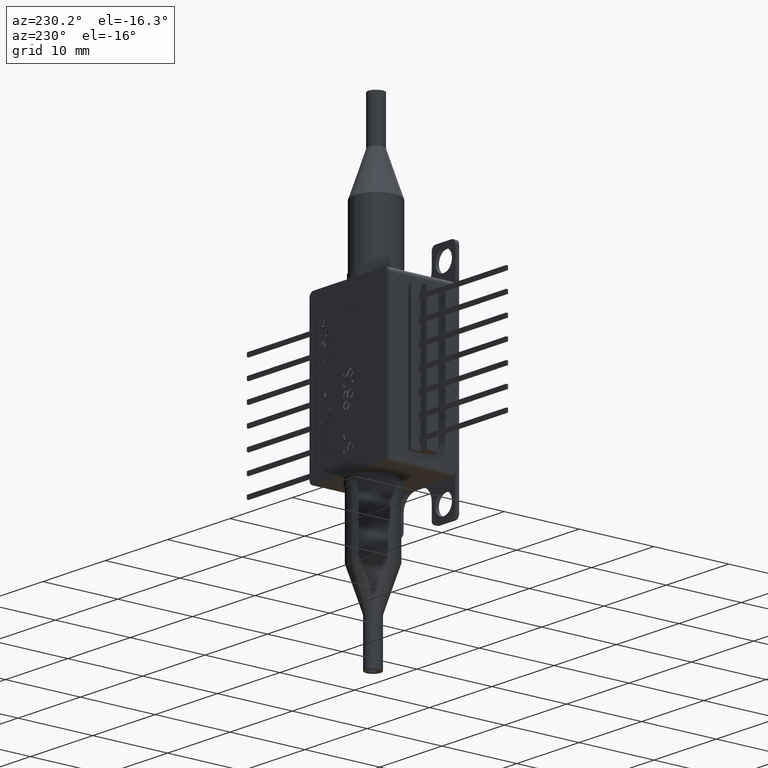
[diagram: clean part render]
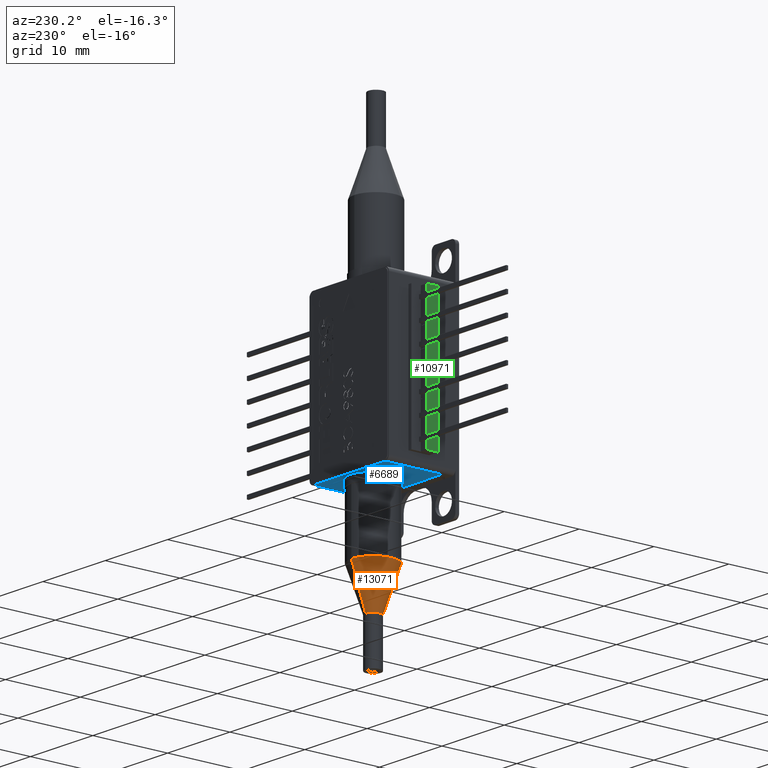
[diagram: same view with three faces highlighted in distinct colors, each labeled with its STEP entity id]
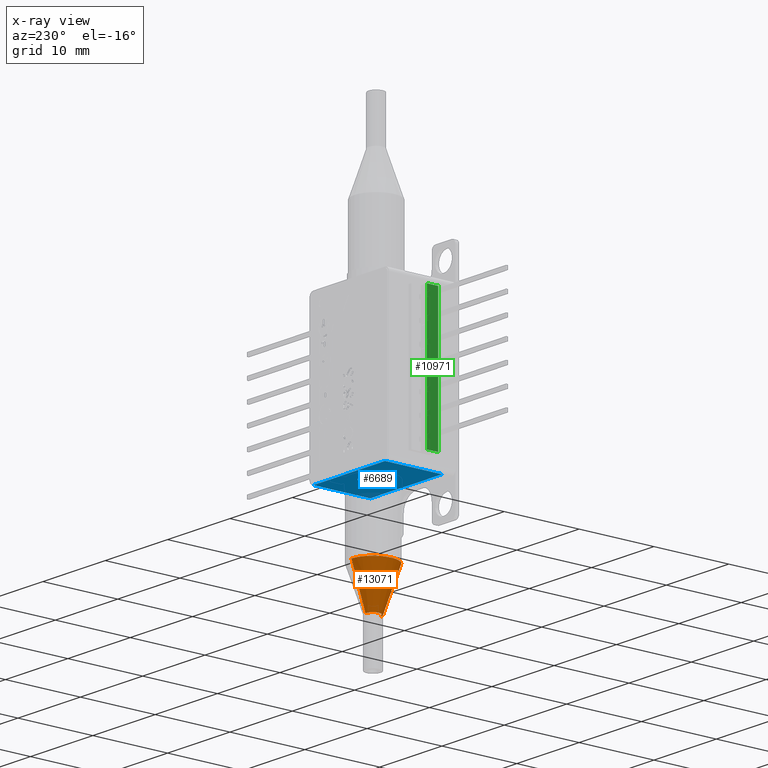
[diagram: x-ray of the same camera — body ghosted, the three highlighted faces saturated]
A machine part, auxiliary view with three faces highlighted in distinct colors.
The next image is the same camera in x-ray (body ghosted, the three faces saturated) — at least one of them is partly hidden behind the body in this view.
Their STEP definitions:

[orange] entity #13071 — the highlighted conical surface has half-angle 18.871 deg.
#552 = DIRECTION ( 'NONE',  ( 0.0000000000000000000, 1.000000000000000000, 0.0000000000000000000 ) ) ;
#1209 = CARTESIAN_POINT ( 'NONE',  ( -103.5761848420183071, 21.53885114794376321, 16.79721449318330784 ) ) ;
#2246 = CARTESIAN_POINT ( 'NONE',  ( -103.5761848420183071, 20.51885114794376364, 22.29721449318330784 ) ) ;
#2400 = DIRECTION ( 'NONE',  ( 0.0000000000000000000, 1.000000000000000000, 0.0000000000000000000 ) ) ;
#3131 = EDGE_CURVE ( 'NONE', #13262, #4790, #8914, .T. ) ;
#3256 = ORIENTED_EDGE ( 'NONE', *, *, #3131, .F. ) ;
#3767 = CONICAL_SURFACE ( 'NONE', #19493, 1.020000000000000018, 0.3293673820665676266 ) ;
#3783 = LINE ( 'NONE', #6023, #21095 ) ;
#3939 = CARTESIAN_POINT ( 'NONE',  ( -103.5761848420183071, 17.61885114794375795, 22.29721449318330784 ) ) ;
#4602 = EDGE_CURVE ( 'NONE', #6433, #21760, #21709, .T. ) ;
#4790 = VERTEX_POINT ( 'NONE', #1209 ) ;
#5500 = ORIENTED_EDGE ( 'NONE', *, *, #11175, .F. ) ;
#6023 = CARTESIAN_POINT ( 'NONE',  ( -103.5761848420183071, 19.49885114794376406, 16.79721449318330784 ) ) ;
#6433 = VERTEX_POINT ( 'NONE', #3939 ) ;
#6671 = CARTESIAN_POINT ( 'NONE',  ( -103.5761848420183071, 20.51885114794376364, 16.79721449318330784 ) ) ;
#7257 = EDGE_CURVE ( 'NONE', #13262, #6433, #3783, .T. ) ;
#7382 = DIRECTION ( 'NONE',  ( -0.0000000000000000000, 0.0000000000000000000, -1.000000000000000000 ) ) ;
#7479 = CARTESIAN_POINT ( 'NONE',  ( -103.5761848420183071, 23.41885114794376577, 22.29721449318330784 ) ) ;
#8914 = CIRCLE ( 'NONE', #16220, 1.020000000000000018 ) ;
#9050 = ORIENTED_EDGE ( 'NONE', *, *, #4602, .T. ) ;
#10380 = ORIENTED_EDGE ( 'NONE', *, *, #7257, .T. ) ;
#10585 = DIRECTION ( 'NONE',  ( -0.0000000000000000000, 0.0000000000000000000, -1.000000000000000000 ) ) ;
#11175 = EDGE_CURVE ( 'NONE', #4790, #21760, #17806, .T. ) ;
#13071 = ADVANCED_FACE ( 'NONE', ( #13217 ), #3767, .T. ) ;
#13217 = FACE_OUTER_BOUND ( 'NONE', #20973, .T. ) ;
#13262 = VERTEX_POINT ( 'NONE', #16040 ) ;
#13344 = VECTOR ( 'NONE', #13433, 999.9999999999998863 ) ;
#13433 = DIRECTION ( 'NONE',  ( 3.961052474285233192E-17, 0.3234444802405945230, 0.9462471496400355342 ) ) ;
#14058 = CARTESIAN_POINT ( 'NONE',  ( -103.5761848420183071, 21.53885114794376321, 16.79721449318330784 ) ) ;
#14099 = CARTESIAN_POINT ( 'NONE',  ( -103.5761848420183071, 20.51885114794376364, 16.79721449318330784 ) ) ;
#15527 = DIRECTION ( 'NONE',  ( 0.0000000000000000000, -1.000000000000000000, 0.0000000000000000000 ) ) ;
#16040 = CARTESIAN_POINT ( 'NONE',  ( -103.5761848420183071, 19.49885114794376406, 16.79721449318330784 ) ) ;
#16220 = AXIS2_PLACEMENT_3D ( 'NONE', #14099, #7382, #2400 ) ;
#17742 = DIRECTION ( 'NONE',  ( 0.0000000000000000000, -0.3234444802405945230, 0.9462471496400355342 ) ) ;
#17806 = LINE ( 'NONE', #14058, #13344 ) ;
#18683 = DIRECTION ( 'NONE',  ( 0.0000000000000000000, 0.0000000000000000000, 1.000000000000000000 ) ) ;
#19493 = AXIS2_PLACEMENT_3D ( 'NONE', #6671, #18683, #15527 ) ;
#19597 = AXIS2_PLACEMENT_3D ( 'NONE', #2246, #10585, #552 ) ;
#20973 = EDGE_LOOP ( 'NONE', ( #5500, #3256, #10380, #9050 ) ) ;
#21095 = VECTOR ( 'NONE', #17742, 999.9999999999998863 ) ;
#21709 = CIRCLE ( 'NONE', #19597, 2.900000000000003464 ) ;
#21760 = VERTEX_POINT ( 'NONE', #7479 ) ;

[blue] entity #6689 — the highlighted planar face has unit normal (-0, 0, 1).
#64 = ORIENTED_EDGE ( 'NONE', *, *, #13916, .F. ) ;
#144 = DIRECTION ( 'NONE',  ( -1.000000000000000000, -0.0000000000000000000, -0.0000000000000000000 ) ) ;
#190 = LINE ( 'NONE', #3375, #3085 ) ;
#479 = AXIS2_PLACEMENT_3D ( 'NONE', #9407, #14447, #12783 ) ;
#739 = CIRCLE ( 'NONE', #479, 1.587500000000005684 ) ;
#1627 = ORIENTED_EDGE ( 'NONE', *, *, #15815, .F. ) ;
#1825 = CARTESIAN_POINT ( 'NONE',  ( -110.1601848420182961, 23.90485114794374510, 31.29721449318331139 ) ) ;
#1973 = CARTESIAN_POINT ( 'NONE',  ( -105.1636848420183128, 20.51885114794374587, 31.29721449318331139 ) ) ;
#2125 = EDGE_LOOP ( 'NONE', ( #64, #20164, #1627, #20250 ) ) ;
#2521 = DIRECTION ( 'NONE',  ( 0.0000000000000000000, 0.0000000000000000000, -1.000000000000000000 ) ) ;
#2711 = VERTEX_POINT ( 'NONE', #17650 ) ;
#2755 = ORIENTED_EDGE ( 'NONE', *, *, #17113, .F. ) ;
#3006 = CARTESIAN_POINT ( 'NONE',  ( -110.1601848420183103, 16.30485114794375079, 31.29721449318331139 ) ) ;
#3025 = FACE_BOUND ( 'NONE', #15501, .T. ) ;
#3085 = VECTOR ( 'NONE', #16831, 1000.000000000000000 ) ;
#3274 = VERTEX_POINT ( 'NONE', #12859 ) ;
#3310 = CARTESIAN_POINT ( 'NONE',  ( -109.5601848420183018, 16.30485114794375079, 31.29721449318331139 ) ) ;
#3375 = CARTESIAN_POINT ( 'NONE',  ( -109.5601848420183018, 16.30485114794374724, 31.29721449318331139 ) ) ;
#3423 = LINE ( 'NONE', #3006, #8946 ) ;
#3833 = AXIS2_PLACEMENT_3D ( 'NONE', #7347, #2521, #20899 ) ;
#3996 = DIRECTION ( 'NONE',  ( -0.0000000000000000000, 0.0000000000000000000, 1.000000000000000000 ) ) ;
#4725 = EDGE_CURVE ( 'NONE', #16112, #10805, #739, .T. ) ;
#4922 = EDGE_CURVE ( 'NONE', #18968, #2711, #190, .T. ) ;
#5964 = VECTOR ( 'NONE', #19854, 1000.000000000000000 ) ;
#6322 = VERTEX_POINT ( 'NONE', #7106 ) ;
#6689 = ADVANCED_FACE ( 'NONE', ( #3025, #7177 ), #20722, .F. ) ;
#7106 = CARTESIAN_POINT ( 'NONE',  ( -98.06018484201830177, 23.90485114794374510, 31.29721449318331139 ) ) ;
#7165 = CARTESIAN_POINT ( 'NONE',  ( -110.1601848420183103, 16.30485114794375079, 31.29721449318331139 ) ) ;
#7177 = FACE_OUTER_BOUND ( 'NONE', #2125, .T. ) ;
#7347 = CARTESIAN_POINT ( 'NONE',  ( -103.5761848420183071, 20.51885114794374587, 31.29721449318331139 ) ) ;
#7384 = DIRECTION ( 'NONE',  ( 1.000000000000000000, 0.0000000000000000000, 0.0000000000000000000 ) ) ;
#7989 = VECTOR ( 'NONE', #144, 1000.000000000000000 ) ;
#8946 = VECTOR ( 'NONE', #16529, 1000.000000000000000 ) ;
#9407 = CARTESIAN_POINT ( 'NONE',  ( -103.5761848420183071, 20.51885114794374587, 31.29721449318331139 ) ) ;
#9576 = CARTESIAN_POINT ( 'NONE',  ( -98.06018484201830177, 16.30485114794375079, 31.29721449318331139 ) ) ;
#10050 = AXIS2_PLACEMENT_3D ( 'NONE', #7165, #3996, #7384 ) ;
#10805 = VERTEX_POINT ( 'NONE', #12817 ) ;
#11345 = CIRCLE ( 'NONE', #3833, 1.587500000000005684 ) ;
#12027 = EDGE_CURVE ( 'NONE', #6322, #3274, #14314, .T. ) ;
#12465 = LINE ( 'NONE', #1825, #7989 ) ;
#12783 = DIRECTION ( 'NONE',  ( -1.000000000000000000, 0.0000000000000000000, 0.0000000000000000000 ) ) ;
#12817 = CARTESIAN_POINT ( 'NONE',  ( -101.9886848420183014, 20.51885114794374587, 31.29721449318331139 ) ) ;
#12859 = CARTESIAN_POINT ( 'NONE',  ( -98.06018484201830177, 16.30485114794375079, 31.29721449318331139 ) ) ;
#13916 = EDGE_CURVE ( 'NONE', #6322, #2711, #12465, .T. ) ;
#14314 = LINE ( 'NONE', #9576, #5964 ) ;
#14447 = DIRECTION ( 'NONE',  ( 0.0000000000000000000, 0.0000000000000000000, -1.000000000000000000 ) ) ;
#14737 = ORIENTED_EDGE ( 'NONE', *, *, #4725, .F. ) ;
#15501 = EDGE_LOOP ( 'NONE', ( #14737, #2755 ) ) ;
#15815 = EDGE_CURVE ( 'NONE', #18968, #3274, #3423, .T. ) ;
#16112 = VERTEX_POINT ( 'NONE', #1973 ) ;
#16529 = DIRECTION ( 'NONE',  ( 1.000000000000000000, 7.582401355855256743E-33, 0.0000000000000000000 ) ) ;
#16831 = DIRECTION ( 'NONE',  ( 2.282530889443167515E-16, 1.000000000000000000, -0.0000000000000000000 ) ) ;
#17113 = EDGE_CURVE ( 'NONE', #10805, #16112, #11345, .T. ) ;
#17650 = CARTESIAN_POINT ( 'NONE',  ( -109.5601848420183018, 23.90485114794374510, 31.29721449318331139 ) ) ;
#18968 = VERTEX_POINT ( 'NONE', #3310 ) ;
#19854 = DIRECTION ( 'NONE',  ( 2.282530889443167515E-16, -1.000000000000000000, 0.0000000000000000000 ) ) ;
#20164 = ORIENTED_EDGE ( 'NONE', *, *, #12027, .T. ) ;
#20250 = ORIENTED_EDGE ( 'NONE', *, *, #4922, .T. ) ;
#20722 = PLANE ( 'NONE',  #10050 ) ;
#20899 = DIRECTION ( 'NONE',  ( -1.000000000000000000, 0.0000000000000000000, 0.0000000000000000000 ) ) ;

[green] entity #10971 — the highlighted planar face has unit normal (1, -0, -0).
#37 = CARTESIAN_POINT ( 'NONE',  ( -111.5801848420182978, 19.99485114794374851, 32.80721449318328808 ) ) ;
#60 = CARTESIAN_POINT ( 'NONE',  ( -111.5801848420183120, 19.99985114794374752, 34.57721449318328411 ) ) ;
#93 = ORIENTED_EDGE ( 'NONE', *, *, #15136, .T. ) ;
#152 = LINE ( 'NONE', #16539, #5673 ) ;
#309 = CARTESIAN_POINT ( 'NONE',  ( -111.5801848420183120, 19.99985114794375107, 37.11721449318328325 ) ) ;
#558 = ORIENTED_EDGE ( 'NONE', *, *, #21532, .F. ) ;
#601 = VERTEX_POINT ( 'NONE', #8384 ) ;
#768 = VECTOR ( 'NONE', #12103, 1000.000000000000000 ) ;
#782 = EDGE_CURVE ( 'NONE', #12844, #16107, #16430, .T. ) ;
#870 = ORIENTED_EDGE ( 'NONE', *, *, #12712, .F. ) ;
#901 = DIRECTION ( 'NONE',  ( -4.336808689942019215E-16, -1.170973411135571931E-16, 1.000000000000000000 ) ) ;
#1055 = VERTEX_POINT ( 'NONE', #9794 ) ;
#1092 = EDGE_CURVE ( 'NONE', #14801, #6387, #15367, .T. ) ;
#1285 = VECTOR ( 'NONE', #20173, 1000.000000000000000 ) ;
#1410 = EDGE_CURVE ( 'NONE', #21179, #2992, #11675, .T. ) ;
#1509 = EDGE_CURVE ( 'NONE', #5858, #19339, #14041, .T. ) ;
#1665 = CARTESIAN_POINT ( 'NONE',  ( -111.5801848420182978, 19.99485114794374851, 38.40721449318328240 ) ) ;
#1766 = CARTESIAN_POINT ( 'NONE',  ( -111.5801848420182978, 19.99485114794374851, 40.94721449318328865 ) ) ;
#1842 = VECTOR ( 'NONE', #16997, 1000.000000000000000 ) ;
#1923 = ORIENTED_EDGE ( 'NONE', *, *, #21528, .F. ) ;
#2111 = VECTOR ( 'NONE', #17515, 1000.000000000000000 ) ;
#2158 = VECTOR ( 'NONE', #19060, 1000.000000000000000 ) ;
#2178 = LINE ( 'NONE', #3578, #11588 ) ;
#2193 = CARTESIAN_POINT ( 'NONE',  ( -111.5801848420183120, 19.99985114794375107, 36.11721449318328325 ) ) ;
#2228 = CARTESIAN_POINT ( 'NONE',  ( -111.5801848420183120, 19.99985114794374752, 34.57721449318328411 ) ) ;
#2270 = VERTEX_POINT ( 'NONE', #17809 ) ;
#2337 = VERTEX_POINT ( 'NONE', #18383 ) ;
#2428 = ORIENTED_EDGE ( 'NONE', *, *, #10751, .F. ) ;
#2562 = EDGE_CURVE ( 'NONE', #6347, #15362, #13924, .T. ) ;
#2622 = EDGE_CURVE ( 'NONE', #13155, #6347, #9210, .T. ) ;
#2626 = EDGE_CURVE ( 'NONE', #2270, #12129, #12361, .T. ) ;
#2660 = CARTESIAN_POINT ( 'NONE',  ( -111.5801848420182978, 19.99485114794374496, 50.58721449318330343 ) ) ;
#2756 = LINE ( 'NONE', #2193, #19550 ) ;
#2821 = CARTESIAN_POINT ( 'NONE',  ( -111.5801848420183120, 19.99985114794374752, 42.44721449318328155 ) ) ;
#2930 = VERTEX_POINT ( 'NONE', #37 ) ;
#2992 = VERTEX_POINT ( 'NONE', #1665 ) ;
#3042 = EDGE_CURVE ( 'NONE', #601, #18256, #16004, .T. ) ;
#3067 = CARTESIAN_POINT ( 'NONE',  ( -111.5801848420182978, 18.47485114794374894, 32.80721449318328808 ) ) ;
#3080 = CARTESIAN_POINT ( 'NONE',  ( -111.5801848420183120, 19.99985114794374752, 42.44721449318328155 ) ) ;
#3173 = DIRECTION ( 'NONE',  ( 3.852692406117739437E-17, 1.000000000000000000, 1.170973411135572670E-16 ) ) ;
#3215 = DIRECTION ( 'NONE',  ( -9.756776359347496941E-32, -1.170973411135570945E-16, 1.000000000000000000 ) ) ;
#3362 = EDGE_CURVE ( 'NONE', #15796, #21210, #16279, .T. ) ;
#3374 = LINE ( 'NONE', #6837, #1285 ) ;
#3523 = CARTESIAN_POINT ( 'NONE',  ( -111.5801848420183120, 19.99985114794374752, 39.90721449318328951 ) ) ;
#3556 = VERTEX_POINT ( 'NONE', #2228 ) ;
#3557 = EDGE_CURVE ( 'NONE', #2337, #1055, #15517, .T. ) ;
#3563 = LINE ( 'NONE', #18148, #11184 ) ;
#3578 = CARTESIAN_POINT ( 'NONE',  ( -111.5801848420182978, 19.99485114794374851, 32.80721449318328808 ) ) ;
#3637 = CARTESIAN_POINT ( 'NONE',  ( -111.5801848420183120, 19.99985114794375107, 37.11721449318328325 ) ) ;
#3718 = DIRECTION ( 'NONE',  ( -1.868914318749827479E-16, -1.000000000000000000, -1.170973411135572670E-16 ) ) ;
#3732 = LINE ( 'NONE', #17145, #16560 ) ;
#3949 = CARTESIAN_POINT ( 'NONE',  ( -111.5801848420183120, 19.99985114794375107, 46.27721449318329405 ) ) ;
#3972 = CARTESIAN_POINT ( 'NONE',  ( -111.5801848420182978, 18.47485114794374894, 32.80721449318328808 ) ) ;
#4024 = DIRECTION ( 'NONE',  ( -1.868914318749827479E-16, -1.000000000000000000, -1.170973411135572670E-16 ) ) ;
#4055 = ORIENTED_EDGE ( 'NONE', *, *, #21378, .F. ) ;
#4089 = VECTOR ( 'NONE', #7247, 1000.000000000000000 ) ;
#4321 = ORIENTED_EDGE ( 'NONE', *, *, #5516, .F. ) ;
#4410 = CARTESIAN_POINT ( 'NONE',  ( -111.5801848420183120, 19.99985114794374752, 48.31721449318330031 ) ) ;
#4441 = LINE ( 'NONE', #7798, #13120 ) ;
#4479 = LINE ( 'NONE', #10456, #14455 ) ;
#4517 = CARTESIAN_POINT ( 'NONE',  ( -111.5801848420183120, 19.99485114794374851, 34.57721449318328411 ) ) ;
#4596 = VECTOR ( 'NONE', #15849, 1000.000000000000000 ) ;
#4728 = DIRECTION ( 'NONE',  ( 1.000000000000000000, -3.852692406117744367E-17, -1.282594001417048336E-31 ) ) ;
#4738 = CARTESIAN_POINT ( 'NONE',  ( -111.5801848420183120, 19.99985114794374752, 47.27721449318330116 ) ) ;
#4763 = VECTOR ( 'NONE', #901, 1000.000000000000000 ) ;
#4830 = VERTEX_POINT ( 'NONE', #4410 ) ;
#5099 = CARTESIAN_POINT ( 'NONE',  ( -111.5801848420183120, 19.99985114794374752, 40.94721449318328865 ) ) ;
#5118 = DIRECTION ( 'NONE',  ( -9.756776359347496941E-32, -1.170973411135570945E-16, 1.000000000000000000 ) ) ;
#5181 = ORIENTED_EDGE ( 'NONE', *, *, #20050, .T. ) ;
#5222 = ORIENTED_EDGE ( 'NONE', *, *, #5484, .T. ) ;
#5260 = EDGE_CURVE ( 'NONE', #16531, #2992, #3563, .T. ) ;
#5271 = CARTESIAN_POINT ( 'NONE',  ( -111.5801848420183120, 19.99985114794374752, 44.73721449318329491 ) ) ;
#5305 = VERTEX_POINT ( 'NONE', #13188 ) ;
#5313 = CARTESIAN_POINT ( 'NONE',  ( -111.5801848420183120, 19.99985114794374752, 49.81721449318330031 ) ) ;
#5329 = ORIENTED_EDGE ( 'NONE', *, *, #18906, .T. ) ;
#5367 = AXIS2_PLACEMENT_3D ( 'NONE', #3067, #4728, #6351 ) ;
#5479 = DIRECTION ( 'NONE',  ( 3.852692406117739437E-17, 1.000000000000000000, 1.170973411135572670E-16 ) ) ;
#5484 = EDGE_CURVE ( 'NONE', #601, #13710, #2756, .T. ) ;
#5498 = CARTESIAN_POINT ( 'NONE',  ( -111.5801848420183120, 19.99985114794374752, 39.90721449318328951 ) ) ;
#5516 = EDGE_CURVE ( 'NONE', #10516, #12129, #21105, .T. ) ;
#5673 = VECTOR ( 'NONE', #3215, 1000.000000000000000 ) ;
#5836 = EDGE_CURVE ( 'NONE', #10369, #2930, #9011, .T. ) ;
#5858 = VERTEX_POINT ( 'NONE', #16573 ) ;
#5887 = CARTESIAN_POINT ( 'NONE',  ( -111.5801848420182978, 18.47485114794374894, 32.80721449318328808 ) ) ;
#5980 = CARTESIAN_POINT ( 'NONE',  ( -111.5801848420182978, 19.99485114794374851, 32.80721449318328808 ) ) ;
#6025 = CARTESIAN_POINT ( 'NONE',  ( -111.5801848420182978, 19.99485114794374851, 36.11721449318328325 ) ) ;
#6164 = ORIENTED_EDGE ( 'NONE', *, *, #3362, .F. ) ;
#6347 = VERTEX_POINT ( 'NONE', #7256 ) ;
#6351 = DIRECTION ( 'NONE',  ( -3.852692406117744367E-17, -1.000000000000000000, -1.170973411135572670E-16 ) ) ;
#6387 = VERTEX_POINT ( 'NONE', #18748 ) ;
#6683 = LINE ( 'NONE', #21197, #14545 ) ;
#6837 = CARTESIAN_POINT ( 'NONE',  ( -111.5801848420183120, 19.99985114794374752, 40.94721449318328865 ) ) ;
#6953 = CARTESIAN_POINT ( 'NONE',  ( -111.5801848420183120, 19.99985114794375107, 37.11721449318328325 ) ) ;
#6999 = VERTEX_POINT ( 'NONE', #2821 ) ;
#7100 = VECTOR ( 'NONE', #15433, 1000.000000000000000 ) ;
#7247 = DIRECTION ( 'NONE',  ( -9.756776359347496941E-32, -1.170973411135570945E-16, 1.000000000000000000 ) ) ;
#7256 = CARTESIAN_POINT ( 'NONE',  ( -111.5801848420183120, 19.99485114794374851, 39.90721449318328951 ) ) ;
#7401 = DIRECTION ( 'NONE',  ( -1.868914318749827479E-16, -1.000000000000000000, -1.170973411135572670E-16 ) ) ;
#7711 = CARTESIAN_POINT ( 'NONE',  ( -111.5801848420183120, 19.99485114794374851, 37.11721449318328325 ) ) ;
#7798 = CARTESIAN_POINT ( 'NONE',  ( -111.5801848420183120, 19.99985114794374752, 43.73721449318329491 ) ) ;
#8175 = CARTESIAN_POINT ( 'NONE',  ( -111.5801848420182978, 19.99485114794374851, 46.27721449318329405 ) ) ;
#8384 = CARTESIAN_POINT ( 'NONE',  ( -111.5801848420183120, 19.99985114794375107, 36.11721449318328325 ) ) ;
#8615 = VECTOR ( 'NONE', #13547, 1000.000000000000000 ) ;
#8683 = ORIENTED_EDGE ( 'NONE', *, *, #13594, .F. ) ;
#8717 = ORIENTED_EDGE ( 'NONE', *, *, #5260, .T. ) ;
#8774 = DIRECTION ( 'NONE',  ( -9.756776359347496941E-32, -1.170973411135570945E-16, 1.000000000000000000 ) ) ;
#8885 = CARTESIAN_POINT ( 'NONE',  ( -111.5801848420183120, 19.99985114794374752, 48.31721449318330031 ) ) ;
#8928 = CARTESIAN_POINT ( 'NONE',  ( -111.5801848420183120, 19.99985114794374752, 39.90721449318328951 ) ) ;
#8948 = EDGE_CURVE ( 'NONE', #16531, #13155, #9406, .T. ) ;
#9011 = LINE ( 'NONE', #21585, #18440 ) ;
#9210 = LINE ( 'NONE', #8928, #2158 ) ;
#9406 = LINE ( 'NONE', #3523, #8615 ) ;
#9461 = DIRECTION ( 'NONE',  ( -1.868914318749827479E-16, -1.000000000000000000, -1.170973411135572670E-16 ) ) ;
#9470 = ORIENTED_EDGE ( 'NONE', *, *, #14999, .T. ) ;
#9531 = VERTEX_POINT ( 'NONE', #5099 ) ;
#9566 = VECTOR ( 'NONE', #5479, 1000.000000000000000 ) ;
#9794 = CARTESIAN_POINT ( 'NONE',  ( -111.5801848420183120, 19.99985114794374752, 44.73721449318329491 ) ) ;
#9863 = LINE ( 'NONE', #12076, #11985 ) ;
#9971 = ORIENTED_EDGE ( 'NONE', *, *, #19888, .F. ) ;
#10058 = ORIENTED_EDGE ( 'NONE', *, *, #5836, .F. ) ;
#10135 = DIRECTION ( 'NONE',  ( -1.868914318749827479E-16, -1.000000000000000000, -1.170973411135572670E-16 ) ) ;
#10369 = VERTEX_POINT ( 'NONE', #5887 ) ;
#10384 = DIRECTION ( 'NONE',  ( -9.756776359347496941E-32, -1.170973411135570945E-16, 1.000000000000000000 ) ) ;
#10456 = CARTESIAN_POINT ( 'NONE',  ( -111.5801848420183120, 19.99985114794374752, 42.44721449318328155 ) ) ;
#10516 = VERTEX_POINT ( 'NONE', #11448 ) ;
#10524 = DIRECTION ( 'NONE',  ( -1.868914318749827479E-16, -1.000000000000000000, -1.170973411135572670E-16 ) ) ;
#10548 = VECTOR ( 'NONE', #8774, 1000.000000000000000 ) ;
#10705 = CARTESIAN_POINT ( 'NONE',  ( -111.5801848420183120, 19.99985114794374752, 47.27721449318330116 ) ) ;
#10751 = EDGE_CURVE ( 'NONE', #2270, #20344, #21764, .T. ) ;
#10971 = ADVANCED_FACE ( 'NONE', ( #11780 ), #12969, .F. ) ;
#11062 = EDGE_CURVE ( 'NONE', #18256, #21179, #21213, .T. ) ;
#11086 = ORIENTED_EDGE ( 'NONE', *, *, #11142, .T. ) ;
#11142 = EDGE_CURVE ( 'NONE', #9531, #15362, #3374, .T. ) ;
#11184 = VECTOR ( 'NONE', #19853, 1000.000000000000000 ) ;
#11348 = CARTESIAN_POINT ( 'NONE',  ( -111.5801848420183120, 19.99485114794374851, 47.27721449318330116 ) ) ;
#11364 = CARTESIAN_POINT ( 'NONE',  ( -111.5801848420183120, 19.99485114794374851, 42.44721449318328155 ) ) ;
#11382 = ORIENTED_EDGE ( 'NONE', *, *, #3557, .F. ) ;
#11448 = CARTESIAN_POINT ( 'NONE',  ( -111.5801848420183120, 19.99485114794374851, 44.73721449318329491 ) ) ;
#11588 = VECTOR ( 'NONE', #10384, 1000.000000000000000 ) ;
#11675 = LINE ( 'NONE', #17597, #4596 ) ;
#11714 = EDGE_CURVE ( 'NONE', #19549, #13710, #9863, .T. ) ;
#11780 = FACE_OUTER_BOUND ( 'NONE', #20639, .T. ) ;
#11961 = VECTOR ( 'NONE', #10135, 1000.000000000000000 ) ;
#11984 = VECTOR ( 'NONE', #16700, 1000.000000000000000 ) ;
#11985 = VECTOR ( 'NONE', #5118, 1000.000000000000000 ) ;
#12002 = CARTESIAN_POINT ( 'NONE',  ( -111.5801848420182978, 19.99485114794374851, 43.73721449318329491 ) ) ;
#12076 = CARTESIAN_POINT ( 'NONE',  ( -111.5801848420182978, 19.99485114794374851, 32.80721449318328808 ) ) ;
#12103 = DIRECTION ( 'NONE',  ( -1.868914318749827479E-16, -1.000000000000000000, -1.170973411135572670E-16 ) ) ;
#12129 = VERTEX_POINT ( 'NONE', #8175 ) ;
#12158 = ORIENTED_EDGE ( 'NONE', *, *, #782, .F. ) ;
#12361 = LINE ( 'NONE', #3949, #13652 ) ;
#12392 = LINE ( 'NONE', #8885, #15536 ) ;
#12652 = VECTOR ( 'NONE', #15697, 1000.000000000000000 ) ;
#12673 = ORIENTED_EDGE ( 'NONE', *, *, #1410, .F. ) ;
#12712 = EDGE_CURVE ( 'NONE', #6387, #19339, #6683, .T. ) ;
#12844 = VERTEX_POINT ( 'NONE', #11364 ) ;
#12969 = PLANE ( 'NONE',  #5367 ) ;
#13120 = VECTOR ( 'NONE', #9461, 1000.000000000000000 ) ;
#13155 = VERTEX_POINT ( 'NONE', #5498 ) ;
#13188 = CARTESIAN_POINT ( 'NONE',  ( -111.5801848420183120, 19.99985114794374752, 33.57721449318327700 ) ) ;
#13361 = CARTESIAN_POINT ( 'NONE',  ( -111.5801848420183120, 19.99985114794375463, 38.40721449318328240 ) ) ;
#13547 = DIRECTION ( 'NONE',  ( -9.756776359347496941E-32, -1.170973411135570945E-16, 1.000000000000000000 ) ) ;
#13594 = EDGE_CURVE ( 'NONE', #1055, #10516, #19195, .T. ) ;
#13628 = CARTESIAN_POINT ( 'NONE',  ( -111.5801848420182978, 19.99485114794374851, 32.80721449318328808 ) ) ;
#13652 = VECTOR ( 'NONE', #4024, 1000.000000000000000 ) ;
#13710 = VERTEX_POINT ( 'NONE', #6025 ) ;
#13763 = ORIENTED_EDGE ( 'NONE', *, *, #2562, .F. ) ;
#13795 = DIRECTION ( 'NONE',  ( -1.868914318749827479E-16, -1.000000000000000000, -1.170973411135572670E-16 ) ) ;
#13887 = EDGE_CURVE ( 'NONE', #4830, #14801, #152, .T. ) ;
#13924 = LINE ( 'NONE', #15454, #16788 ) ;
#13954 = LINE ( 'NONE', #3080, #19991 ) ;
#14041 = LINE ( 'NONE', #15171, #9566 ) ;
#14233 = LINE ( 'NONE', #3972, #12652 ) ;
#14455 = VECTOR ( 'NONE', #3718, 1000.000000000000000 ) ;
#14545 = VECTOR ( 'NONE', #17958, 1000.000000000000000 ) ;
#14793 = DIRECTION ( 'NONE',  ( -9.756776359347496941E-32, -1.170973411135570945E-16, 1.000000000000000000 ) ) ;
#14801 = VERTEX_POINT ( 'NONE', #15715 ) ;
#14992 = LINE ( 'NONE', #60, #10548 ) ;
#14999 = EDGE_CURVE ( 'NONE', #4830, #21210, #12392, .T. ) ;
#15073 = VERTEX_POINT ( 'NONE', #20916 ) ;
#15136 = EDGE_CURVE ( 'NONE', #10369, #5858, #14233, .T. ) ;
#15171 = CARTESIAN_POINT ( 'NONE',  ( -111.5801848420182978, 18.47485114794374894, 50.58721449318330343 ) ) ;
#15332 = ORIENTED_EDGE ( 'NONE', *, *, #2626, .T. ) ;
#15362 = VERTEX_POINT ( 'NONE', #1766 ) ;
#15367 = LINE ( 'NONE', #5313, #11961 ) ;
#15433 = DIRECTION ( 'NONE',  ( -9.756776359347496941E-32, -1.170973411135570945E-16, 1.000000000000000000 ) ) ;
#15454 = CARTESIAN_POINT ( 'NONE',  ( -111.5801848420182978, 19.99485114794374851, 32.80721449318328808 ) ) ;
#15517 = LINE ( 'NONE', #20626, #4763 ) ;
#15536 = VECTOR ( 'NONE', #13795, 1000.000000000000000 ) ;
#15697 = DIRECTION ( 'NONE',  ( -9.756776359347496941E-32, -1.170973411135570945E-16, 1.000000000000000000 ) ) ;
#15715 = CARTESIAN_POINT ( 'NONE',  ( -111.5801848420183120, 19.99985114794374752, 49.81721449318330031 ) ) ;
#15766 = VECTOR ( 'NONE', #16206, 1000.000000000000000 ) ;
#15796 = VERTEX_POINT ( 'NONE', #11348 ) ;
#15849 = DIRECTION ( 'NONE',  ( -9.756776359347496941E-32, -1.170973411135570945E-16, 1.000000000000000000 ) ) ;
#15961 = ORIENTED_EDGE ( 'NONE', *, *, #11714, .F. ) ;
#16004 = LINE ( 'NONE', #3637, #7100 ) ;
#16052 = CARTESIAN_POINT ( 'NONE',  ( -111.5801848420182978, 19.99485114794374496, 48.31721449318330031 ) ) ;
#16107 = VERTEX_POINT ( 'NONE', #12002 ) ;
#16206 = DIRECTION ( 'NONE',  ( -9.756776359347496941E-32, -1.170973411135570945E-16, 1.000000000000000000 ) ) ;
#16279 = LINE ( 'NONE', #5980, #15766 ) ;
#16406 = ORIENTED_EDGE ( 'NONE', *, *, #20970, .F. ) ;
#16430 = LINE ( 'NONE', #13628, #11984 ) ;
#16531 = VERTEX_POINT ( 'NONE', #13361 ) ;
#16539 = CARTESIAN_POINT ( 'NONE',  ( -111.5801848420183120, 19.99985114794374752, 49.81721449318330031 ) ) ;
#16560 = VECTOR ( 'NONE', #16992, 1000.000000000000000 ) ;
#16573 = CARTESIAN_POINT ( 'NONE',  ( -111.5801848420182978, 18.47485114794374894, 50.58721449318330343 ) ) ;
#16700 = DIRECTION ( 'NONE',  ( -9.756776359347496941E-32, -1.170973411135570945E-16, 1.000000000000000000 ) ) ;
#16788 = VECTOR ( 'NONE', #18980, 1000.000000000000000 ) ;
#16972 = ORIENTED_EDGE ( 'NONE', *, *, #21634, .F. ) ;
#16992 = DIRECTION ( 'NONE',  ( 2.467894371192189271E-16, -1.000000000000000000, -1.170973411135572670E-16 ) ) ;
#16997 = DIRECTION ( 'NONE',  ( -1.868914318749827479E-16, -1.000000000000000000, -1.170973411135572670E-16 ) ) ;
#17109 = CARTESIAN_POINT ( 'NONE',  ( -111.5801848420182978, 19.99485114794374851, 32.80721449318328808 ) ) ;
#17145 = CARTESIAN_POINT ( 'NONE',  ( -111.5801848420183120, 19.99985114794374752, 34.57721449318328411 ) ) ;
#17232 = VECTOR ( 'NONE', #7401, 1000.000000000000000 ) ;
#17266 = ORIENTED_EDGE ( 'NONE', *, *, #8948, .F. ) ;
#17515 = DIRECTION ( 'NONE',  ( 4.336808689942016257E-16, -1.170973411135569958E-16, 1.000000000000000000 ) ) ;
#17597 = CARTESIAN_POINT ( 'NONE',  ( -111.5801848420182978, 19.99485114794374851, 32.80721449318328808 ) ) ;
#17809 = CARTESIAN_POINT ( 'NONE',  ( -111.5801848420183120, 19.99985114794375107, 46.27721449318329405 ) ) ;
#17958 = DIRECTION ( 'NONE',  ( -9.756776359347496941E-32, -1.170973411135570945E-16, 1.000000000000000000 ) ) ;
#17991 = DIRECTION ( 'NONE',  ( 2.467894371192189271E-16, -1.000000000000000000, -1.170973411135572670E-16 ) ) ;
#18108 = ORIENTED_EDGE ( 'NONE', *, *, #3042, .F. ) ;
#18148 = CARTESIAN_POINT ( 'NONE',  ( -111.5801848420183120, 19.99985114794375463, 38.40721449318328240 ) ) ;
#18256 = VERTEX_POINT ( 'NONE', #6953 ) ;
#18383 = CARTESIAN_POINT ( 'NONE',  ( -111.5801848420183120, 19.99985114794374752, 43.73721449318329491 ) ) ;
#18440 = VECTOR ( 'NONE', #3173, 1000.000000000000000 ) ;
#18537 = VECTOR ( 'NONE', #17991, 1000.000000000000000 ) ;
#18748 = CARTESIAN_POINT ( 'NONE',  ( -111.5801848420183120, 19.99485114794374851, 49.81721449318330031 ) ) ;
#18906 = EDGE_CURVE ( 'NONE', #2337, #16107, #4441, .T. ) ;
#18980 = DIRECTION ( 'NONE',  ( -9.756776359347496941E-32, -1.170973411135570945E-16, 1.000000000000000000 ) ) ;
#19058 = CARTESIAN_POINT ( 'NONE',  ( -111.5801848420183120, 19.99985114794374752, 47.27721449318330116 ) ) ;
#19060 = DIRECTION ( 'NONE',  ( -1.868914318749827479E-16, -1.000000000000000000, -1.170973411135572670E-16 ) ) ;
#19085 = LINE ( 'NONE', #21447, #18537 ) ;
#19195 = LINE ( 'NONE', #5271, #1842 ) ;
#19339 = VERTEX_POINT ( 'NONE', #2660 ) ;
#19369 = LINE ( 'NONE', #19058, #17232 ) ;
#19549 = VERTEX_POINT ( 'NONE', #4517 ) ;
#19550 = VECTOR ( 'NONE', #10524, 1000.000000000000000 ) ;
#19713 = ORIENTED_EDGE ( 'NONE', *, *, #1509, .T. ) ;
#19853 = DIRECTION ( 'NONE',  ( -1.868914318749827479E-16, -1.000000000000000000, -1.170973411135572670E-16 ) ) ;
#19888 = EDGE_CURVE ( 'NONE', #20344, #15796, #19369, .T. ) ;
#19991 = VECTOR ( 'NONE', #14793, 1000.000000000000000 ) ;
#20027 = ORIENTED_EDGE ( 'NONE', *, *, #13887, .F. ) ;
#20050 = EDGE_CURVE ( 'NONE', #5305, #15073, #19085, .T. ) ;
#20173 = DIRECTION ( 'NONE',  ( -1.868914318749827479E-16, -1.000000000000000000, -1.170973411135572670E-16 ) ) ;
#20344 = VERTEX_POINT ( 'NONE', #4738 ) ;
#20626 = CARTESIAN_POINT ( 'NONE',  ( -111.5801848420183120, 19.99985114794374752, 44.73721449318329491 ) ) ;
#20639 = EDGE_LOOP ( 'NONE', ( #19713, #870, #21703, #20027, #9470, #6164, #9971, #2428, #15332, #4321, #8683, #11382, #5329, #12158, #16972, #4055, #11086, #13763, #21279, #17266, #8717, #12673, #21074, #18108, #5222, #15961, #16406, #558, #5181, #1923, #10058, #93 ) ) ;
#20916 = CARTESIAN_POINT ( 'NONE',  ( -111.5801848420183120, 19.99485114794374851, 33.57721449318327700 ) ) ;
#20970 = EDGE_CURVE ( 'NONE', #3556, #19549, #3732, .T. ) ;
#21074 = ORIENTED_EDGE ( 'NONE', *, *, #11062, .F. ) ;
#21105 = LINE ( 'NONE', #17109, #4089 ) ;
#21179 = VERTEX_POINT ( 'NONE', #7711 ) ;
#21197 = CARTESIAN_POINT ( 'NONE',  ( -111.5801848420182978, 19.99485114794374851, 32.80721449318328808 ) ) ;
#21210 = VERTEX_POINT ( 'NONE', #16052 ) ;
#21213 = LINE ( 'NONE', #309, #768 ) ;
#21279 = ORIENTED_EDGE ( 'NONE', *, *, #2622, .F. ) ;
#21378 = EDGE_CURVE ( 'NONE', #9531, #6999, #13954, .T. ) ;
#21447 = CARTESIAN_POINT ( 'NONE',  ( -111.5801848420183120, 19.99985114794374752, 33.57721449318327700 ) ) ;
#21528 = EDGE_CURVE ( 'NONE', #2930, #15073, #2178, .T. ) ;
#21532 = EDGE_CURVE ( 'NONE', #5305, #3556, #14992, .T. ) ;
#21585 = CARTESIAN_POINT ( 'NONE',  ( -111.5801848420182978, 18.47485114794374894, 32.80721449318328808 ) ) ;
#21634 = EDGE_CURVE ( 'NONE', #6999, #12844, #4479, .T. ) ;
#21703 = ORIENTED_EDGE ( 'NONE', *, *, #1092, .F. ) ;
#21764 = LINE ( 'NONE', #10705, #2111 ) ;